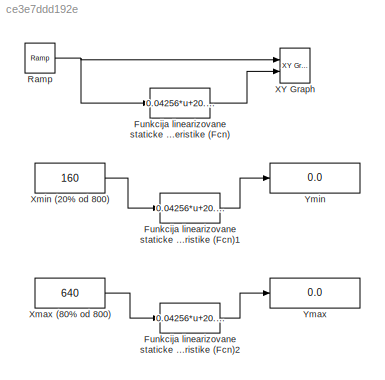
MODEL slx_ce3e7ddd192e
KIND model
CONFIG AbsTol = auto
CONFIG FixedStep = auto
CONFIG MaxStep = auto
CONFIG MinStep = auto
CONFIG RelTol = 1e-3
CONFIG SampleTimeConstraint = Unconstrained
CONFIG Solver = VariableStepAuto
CONFIG SolverMode = Auto
CONFIG SolverName = VariableStepAuto
CONFIG StartTime = 0.0
CONFIG StopTime = 800
BLOCK [Fcn] Funkcija linearizovane staticke karakteristike (Fcn)
  Expr = 0.04256*u+20.7244
BLOCK [Fcn] Funkcija linearizovane staticke karakteristike (Fcn)1
  Expr = 0.04256*u+20.7244
BLOCK [Fcn] Funkcija linearizovane staticke karakteristike (Fcn)2
  Expr = 0.04256*u+20.7244
BLOCK [Reference] Ramp  REF=simulink/Sources/Ramp
  Ports = [0, 1]
  SourceBlock = simulink/Sources/Ramp
  SourceType = Ramp
BLOCK [Reference] XY Graph  REF=simulink/Sinks/XY Graph
  Ports = [2]
  SourceBlock = simulink/Sinks/XY Graph
  SourceType = XY scope.
BLOCK [Constant] Xmax (80% od 800)
  Value = 640
BLOCK [Constant] Xmin (20% od 800)
  Value = 160
BLOCK [Display] Ymax
  Decimation = 1
  Ports = [1]
BLOCK [Display] Ymin
  Decimation = 1
  Ports = [1]
LINE Funkcija linearizovane staticke karakteristike (Fcn)1:1 -> Ymin:1
LINE Funkcija linearizovane staticke karakteristike (Fcn)2:1 -> Ymax:1
LINE Funkcija linearizovane staticke karakteristike (Fcn):1 -> XY Graph:2
NET Ramp:1 -> Funkcija linearizovane staticke karakteristike (Fcn):1, XY Graph:1
LINE Xmax (80% od 800):1 -> Funkcija linearizovane staticke karakteristike (Fcn)2:1
LINE Xmin (20% od 800):1 -> Funkcija linearizovane staticke karakteristike (Fcn)1:1
note: NET lines group one-source signal fan-out (src -> all destinations, sorted); 1:1 wires keep LINE
